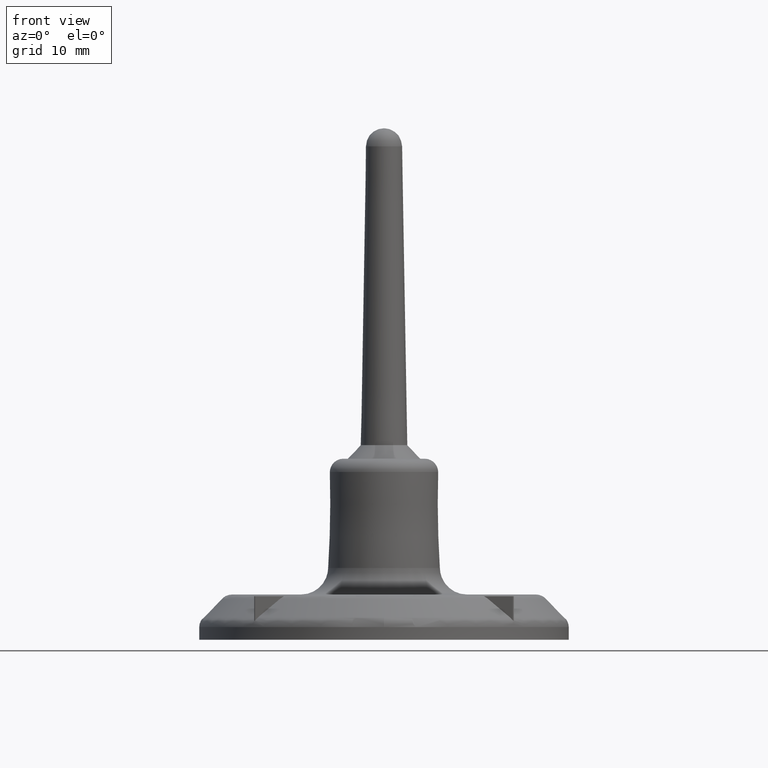
[diagram: clean part render]
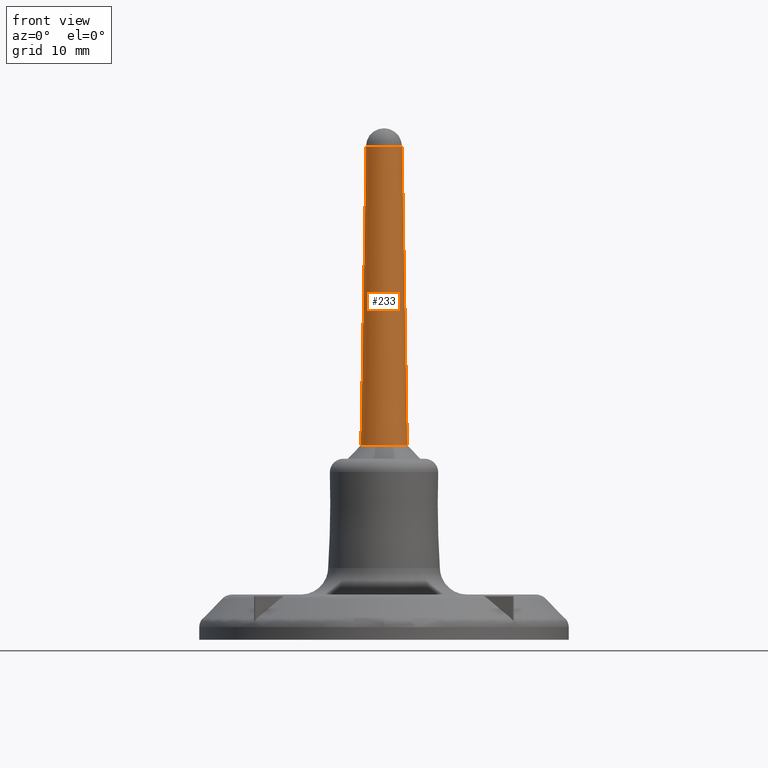
[diagram: same view with one face highlighted and labeled with its STEP entity id]
A machine part, front view. The second image highlights one B-rep face of the part: STEP entity #233.
In plain terms, the highlighted conical surface has half-angle 1 deg.
Its self-contained STEP definition (entity closure, byte-faithful):
#233 = ADVANCED_FACE( '', ( #496, #497 ), #498, .T. );
#496 = FACE_OUTER_BOUND( '', #772, .T. );
#497 = FACE_BOUND( '', #773, .T. );
#498 = CONICAL_SURFACE( '', #774, 2.00000000000000, 0.0174532925199433 );
#772 = EDGE_LOOP( '', ( #1640 ) );
#773 = EDGE_LOOP( '', ( #1641 ) );
#774 = AXIS2_PLACEMENT_3D( '', #1642, #1643, #1644 );
#1640 = ORIENTED_EDGE( '', *, *, #1936, .F. );
#1641 = ORIENTED_EDGE( '', *, *, #1937, .T. );
#1642 = CARTESIAN_POINT( '', ( 3.93659776769266E-024, 6.42911502195647E-015, 54.4996279999965 ) );
#1643 = DIRECTION( '', ( -7.42616500954294E-026, 4.89772725781145E-026, -1.00000000000000 ) );
#1644 = DIRECTION( '', ( -0.951505468930490, 0.307631829620031, 8.57273341706079E-026 ) );
#1936 = EDGE_CURVE( '', #2379, #2379, #2380, .T. );
#1937 = EDGE_CURVE( '', #2381, #2381, #2382, .T. );
#2379 = VERTEX_POINT( '', #3161 );
#2380 = CIRCLE( '', #3162, 2.57601714263118 );
#2381 = VERTEX_POINT( '', #3163 );
#2382 = CIRCLE( '', #3164, 2.00000000000000 );
#3161 = CARTESIAN_POINT( '', ( -2.45109439927226, 0.792464866720202, 21.4996279999966 ) );
#3162 = AXIS2_PLACEMENT_3D( '', #3513, #3514, #3515 );
#3163 = CARTESIAN_POINT( '', ( -1.90301093786098, 0.615263659240069, 54.4996279999965 ) );
#3164 = AXIS2_PLACEMENT_3D( '', #3516, #3517, #3518 );
#3513 = CARTESIAN_POINT( '', ( 1.48596331454350E-024, 6.42911502357272E-015, 21.4996279999966 ) );
#3514 = DIRECTION( '', ( -7.42616500954294E-026, 4.89772725781145E-026, -1.00000000000000 ) );
#3515 = DIRECTION( '', ( -0.951505468930490, 0.307631829620031, 8.57273341706079E-026 ) );
#3516 = CARTESIAN_POINT( '', ( 3.93659776769266E-024, 6.42911502195647E-015, 54.4996279999965 ) );
#3517 = DIRECTION( '', ( -7.42616500954294E-026, 4.89772725781145E-026, -1.00000000000000 ) );
#3518 = DIRECTION( '', ( -0.951505468930490, 0.307631829620031, 8.57273341706079E-026 ) );